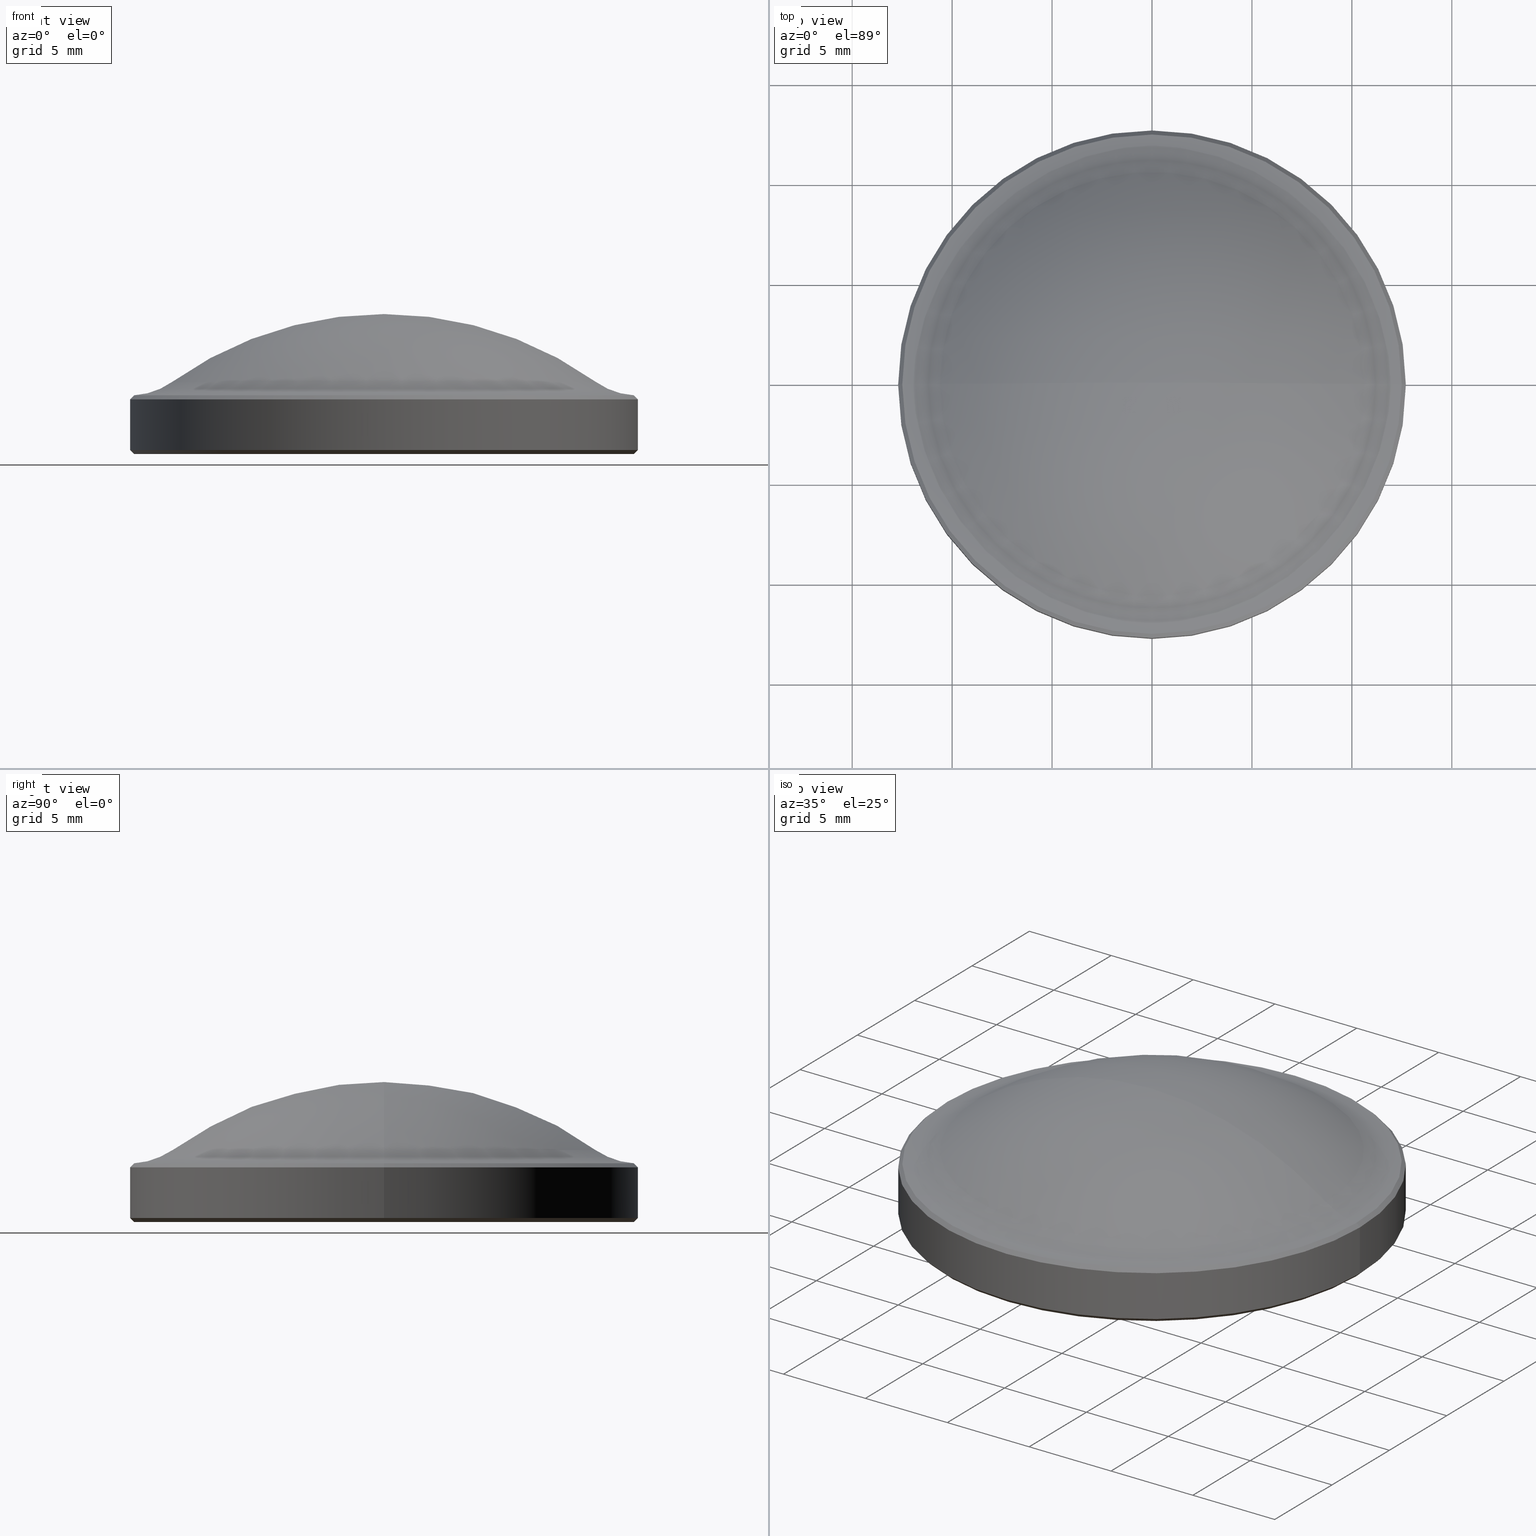
[diagram: canonical four-view strip — front | top / right | iso, engineering-drawing reading convention]
A machine part, canonical four-view strip (front | top / right | iso — engineering-drawing reading convention). The complete STEP part file that produces these views, byte-faithful:
ISO-10303-21;
HEADER;
FILE_DESCRIPTION (( 'STEP AP214' ),
    '1' );
FILE_NAME ('GL7AL1-025-012-IR1.STEP',
    '2024-07-21T09:23:36',
    ( '' ),
    ( '' ),
    'SwSTEP 2.0',
    'SolidWorks 2022',
    '' );
FILE_SCHEMA (( 'AUTOMOTIVE_DESIGN' ));
ENDSEC;

DATA;
#1 = SURFACE_STYLE_USAGE ( .BOTH. , #103 ) ;
#2 = DIRECTION ( 'NONE',  ( -1.000000000000000000, 0.000000000000000000, 1.388433779733575513E-16 ) ) ;
#3 = CARTESIAN_POINT ( 'NONE',  ( 0.000000000000000000, 0.000000000000000000, 0.000000000000000000 ) ) ;
#4 =( NAMED_UNIT ( * ) SI_UNIT ( $, .STERADIAN. ) SOLID_ANGLE_UNIT ( ) );
#5 = ORIENTED_EDGE ( 'NONE', *, *, #248, .F. ) ;
#6 = FACE_OUTER_BOUND ( 'NONE', #128, .T. ) ;
#7 = EDGE_CURVE ( 'NONE', #204, #291, #211, .T. ) ;
#8 = FILL_AREA_STYLE ('',( #209 ) ) ;
#9 = CIRCLE ( 'NONE', #90, 12.69999999999999929 ) ;
#10 = DIRECTION ( 'NONE',  ( -1.000000000000000000, 0.000000000000000000, 0.000000000000000000 ) ) ;
#11 = CARTESIAN_POINT ( 'NONE',  ( 0.000000000000000000, 0.000000000000000000, 0.000000000000000000 ) ) ;
#12 = MECHANICAL_DESIGN_GEOMETRIC_PRESENTATION_REPRESENTATION (  '', ( #74 ), #122 ) ;
#13 = DIRECTION ( 'NONE',  ( -0.000000000000000000, -0.000000000000000000, -1.000000000000000000 ) ) ;
#14 =( GEOMETRIC_REPRESENTATION_CONTEXT ( 3 ) GLOBAL_UNCERTAINTY_ASSIGNED_CONTEXT ( ( #226 ) ) GLOBAL_UNIT_ASSIGNED_CONTEXT ( ( #92, #141, #250 ) ) REPRESENTATION_CONTEXT ( 'NONE', 'WORKASPACE' ) );
#15 = CARTESIAN_POINT ( 'NONE',  ( 0.000000000000000000, 0.000000000000000000, -11.25199999999999889 ) ) ;
#16 = DIRECTION ( 'NONE',  ( 1.000000000000000000, 0.000000000000000000, 0.000000000000000000 ) ) ;
#17 = PRODUCT_DEFINITION_SHAPE ( 'NONE', 'NONE',  #48 ) ;
#18 = EDGE_CURVE ( 'NONE', #314, #254, #304, .T. ) ;
#19 = VERTEX_POINT ( 'NONE', #275 ) ;
#20 = VECTOR ( 'NONE', #279, 1000.000000000000000 ) ;
#21 = CARTESIAN_POINT ( 'NONE',  ( 8.206617439655612360E-17, 0.000000000000000000, 3.600121168435616248 ) ) ;
#22 = VERTEX_POINT ( 'NONE', #163 ) ;
#23 = DIRECTION ( 'NONE',  ( -1.224646799147353207E-16, -0.000000000000000000, -1.000000000000000000 ) ) ;
#24 = DIRECTION ( 'NONE',  ( 0.000000000000000000, 0.000000000000000000, -1.000000000000000000 ) ) ;
#25 = ORIENTED_EDGE ( 'NONE', *, *, #268, .T. ) ;
#26 =( GEOMETRIC_REPRESENTATION_CONTEXT ( 3 ) GLOBAL_UNCERTAINTY_ASSIGNED_CONTEXT ( ( #169 ) ) GLOBAL_UNIT_ASSIGNED_CONTEXT ( ( #308, #55, #221 ) ) REPRESENTATION_CONTEXT ( 'NONE', 'WORKASPACE' ) );
#27 = CIRCLE ( 'NONE', #59, 12.49410307713541712 ) ;
#28 = DIRECTION ( 'NONE',  ( -0.000000000000000000, -0.000000000000000000, 1.000000000000000000 ) ) ;
#29 = CARTESIAN_POINT ( 'NONE',  ( 12.69999999999999929, 1.555301434917138433E-15, 6.527496314496314511 ) ) ;
#30 = COLOUR_RGB ( '',1.000000000000000000, 1.000000000000000000, 1.000000000000000000 ) ;
#31 = EDGE_CURVE ( 'NONE', #204, #178, #264, .T. ) ;
#32 = EDGE_LOOP ( 'NONE', ( #143, #39, #292, #53 ) ) ;
#33 =( LENGTH_UNIT ( ) NAMED_UNIT ( * ) SI_UNIT ( .MILLI., .METRE. ) );
#34 = MANIFOLD_SOLID_BREP ( '����2', #124 ) ;
#35 = DIRECTION ( 'NONE',  ( 1.000000000000000000, 0.000000000000000000, -1.388433779733579211E-16 ) ) ;
#36 = AXIS2_PLACEMENT_3D ( 'NONE', #259, #170, #212 ) ;
#37 = UNCERTAINTY_MEASURE_WITH_UNIT (LENGTH_MEASURE( 1.000000000000000082E-05 ), #33, 'distance_accuracy_value', 'NONE');
#38 = ORIENTED_EDGE ( 'NONE', *, *, #190, .F. ) ;
#39 = ORIENTED_EDGE ( 'NONE', *, *, #198, .F. ) ;
#40 = FACE_OUTER_BOUND ( 'NONE', #217, .T. ) ;
#41 = AXIS2_PLACEMENT_3D ( 'NONE', #29, #161, #299 ) ;
#42 = SPHERICAL_SURFACE ( 'NONE', #85, 18.25199999999999889 ) ;
#43 = CARTESIAN_POINT ( 'NONE',  ( 0.000000000000000000, 0.000000000000000000, 2.730000000000021299 ) ) ;
#44 = DIRECTION ( 'NONE',  ( -1.000000000000000000, 0.000000000000000000, 9.504292548634709852E-17 ) ) ;
#45 = AXIS2_PLACEMENT_3D ( 'NONE', #182, #262, #101 ) ;
#46 = DIRECTION ( 'NONE',  ( -0.000000000000000000, -0.000000000000000000, -1.000000000000000000 ) ) ;
#47 = EDGE_CURVE ( 'NONE', #22, #254, #295, .T. ) ;
#48 = PRODUCT_DEFINITION ( 'δ֪', '', #285, #230 ) ;
#49 = CARTESIAN_POINT ( 'NONE',  ( 0.000000000000000000, 0.000000000000000000, 0.2000000000000196065 ) ) ;
#50 = ORIENTED_EDGE ( 'NONE', *, *, #190, .T. ) ;
#51 = AXIS2_PLACEMENT_3D ( 'NONE', #115, #91, #2 ) ;
#52 = LINE ( 'NONE', #223, #72 ) ;
#53 = ORIENTED_EDGE ( 'NONE', *, *, #18, .F. ) ;
#54 = APPLICATION_CONTEXT ( 'automotive_design' ) ;
#55 =( NAMED_UNIT ( * ) PLANE_ANGLE_UNIT ( ) SI_UNIT ( $, .RADIAN. ) );
#56 = EDGE_LOOP ( 'NONE', ( #274, #207 ) ) ;
#57 = DIRECTION ( 'NONE',  ( 1.000000000000000000, 0.000000000000000000, 0.000000000000000000 ) ) ;
#58 = CIRCLE ( 'NONE', #245, 18.25199999999999889 ) ;
#59 = AXIS2_PLACEMENT_3D ( 'NONE', #302, #306, #213 ) ;
#60 = ADVANCED_FACE ( 'NONE', ( #6 ), #197, .T. ) ;
#61 = EDGE_CURVE ( 'NONE', #291, #186, #111, .T. ) ;
#62 = SURFACE_SIDE_STYLE ('',( #296 ) ) ;
#63 = SHAPE_DEFINITION_REPRESENTATION ( #17, #240 ) ;
#64 = ORIENTED_EDGE ( 'NONE', *, *, #61, .T. ) ;
#65 = EDGE_LOOP ( 'NONE', ( #208, #144, #132, #220 ) ) ;
#66 = ORIENTED_EDGE ( 'NONE', *, *, #248, .T. ) ;
#67 = CARTESIAN_POINT ( 'NONE',  ( 0.000000000000000000, 0.000000000000000000, -11.25199999999999889 ) ) ;
#68 = FACE_OUTER_BOUND ( 'NONE', #286, .T. ) ;
#69 = DIRECTION ( 'NONE',  ( -1.224646799147353207E-16, -0.000000000000000000, -1.000000000000000000 ) ) ;
#70 = CARTESIAN_POINT ( 'NONE',  ( 0.000000000000000000, 0.000000000000000000, 0.000000000000000000 ) ) ;
#71 = ADVANCED_FACE ( 'NONE', ( #172 ), #216, .F. ) ;
#72 = VECTOR ( 'NONE', #80, 1000.000000000000000 ) ;
#73 = CIRCLE ( 'NONE', #247, 12.69999999999999929 ) ;
#74 = STYLED_ITEM ( 'NONE', ( #116 ), #240 ) ;
#75 = CARTESIAN_POINT ( 'NONE',  ( 12.69999999999999929, 1.555301434917138038E-15, 0.2000000000000196065 ) ) ;
#76 = ORIENTED_EDGE ( 'NONE', *, *, #165, .F. ) ;
#77 = COLOUR_RGB ( '',1.000000000000000000, 1.000000000000000000, 1.000000000000000000 ) ;
#78 = DIRECTION ( 'NONE',  ( -1.000000000000000000, 0.000000000000000000, 1.226362234330445841E-16 ) ) ;
#79 = EDGE_LOOP ( 'NONE', ( #76, #108, #273, #159 ) ) ;
#80 = DIRECTION ( 'NONE',  ( 0.7071067811865436870, 8.659560562354887252E-17, -0.7071067811865513475 ) ) ;
#81 = VERTEX_POINT ( 'NONE', #261 ) ;
#82 = ORIENTED_EDGE ( 'NONE', *, *, #146, .T. ) ;
#83 = ADVANCED_FACE ( 'NONE', ( #125 ), #42, .T. ) ;
#84 = EDGE_CURVE ( 'NONE', #291, #204, #27, .T. ) ;
#85 = AXIS2_PLACEMENT_3D ( 'NONE', #67, #151, #44 ) ;
#86 = ORIENTED_EDGE ( 'NONE', *, *, #84, .T. ) ;
#87 = ORIENTED_EDGE ( 'NONE', *, *, #310, .F. ) ;
#88 = DIRECTION ( 'NONE',  ( 0.000000000000000000, 0.000000000000000000, 1.000000000000000000 ) ) ;
#89 = CARTESIAN_POINT ( 'NONE',  ( 12.69999999999999929, 0.000000000000000000, 0.2000000000000196065 ) ) ;
#90 = AXIS2_PLACEMENT_3D ( 'NONE', #107, #28, #57 ) ;
#91 = DIRECTION ( 'NONE',  ( -1.224646799147353207E-16, 0.000000000000000000, -1.000000000000000000 ) ) ;
#92 =( LENGTH_UNIT ( ) NAMED_UNIT ( * ) SI_UNIT ( .MILLI., .METRE. ) );
#93 = PLANE ( 'NONE',  #270 ) ;
#94 = SPHERICAL_SURFACE ( 'NONE', #36, 18.25199999999999889 ) ;
#95 = AXIS2_PLACEMENT_3D ( 'NONE', #195, #281, #235 ) ;
#96 = DIRECTION ( 'NONE',  ( -1.000000000000000000, -1.224646799147353207E-16, 0.000000000000000000 ) ) ;
#97 = DIRECTION ( 'NONE',  ( 1.000000000000000000, 0.000000000000000000, -1.365923996832131609E-16 ) ) ;
#98 = CARTESIAN_POINT ( 'NONE',  ( 0.000000000000000000, 0.000000000000000000, 2.730000000000021299 ) ) ;
#99 = CONICAL_SURFACE ( 'NONE', #134, 12.49410307713545087, 0.7853981633974430610 ) ;
#100 = MECHANICAL_DESIGN_GEOMETRIC_PRESENTATION_REPRESENTATION (  '', ( #162 ), #14 ) ;
#101 = DIRECTION ( 'NONE',  ( 1.000000000000000000, 0.000000000000000000, 0.000000000000000000 ) ) ;
#102 = ORIENTED_EDGE ( 'NONE', *, *, #47, .F. ) ;
#103 = SURFACE_SIDE_STYLE ('',( #312 ) ) ;
#104 = CARTESIAN_POINT ( 'NONE',  ( -4.398440698781394997E-16, 0.000000000000000000, 2.935896922864572822 ) ) ;
#105 = ORIENTED_EDGE ( 'NONE', *, *, #206, .F. ) ;
#106 = AXIS2_PLACEMENT_3D ( 'NONE', #21, #202, #180 ) ;
#107 = CARTESIAN_POINT ( 'NONE',  ( 0.000000000000000000, 0.000000000000000000, 0.2000000000000196065 ) ) ;
#108 = ORIENTED_EDGE ( 'NONE', *, *, #147, .T. ) ;
#109 = FACE_OUTER_BOUND ( 'NONE', #32, .T. ) ;
#110 = ADVANCED_FACE ( 'NONE', ( #303 ), #192, .F. ) ;
#111 = LINE ( 'NONE', #205, #173 ) ;
#112 = AXIS2_PLACEMENT_3D ( 'NONE', #214, #278, #10 ) ;
#113 = APPLICATION_PROTOCOL_DEFINITION ( 'draft international standard', 'automotive_design', 1998, #54 ) ;
#114 = SURFACE_STYLE_USAGE ( .BOTH. , #62 ) ;
#115 = CARTESIAN_POINT ( 'NONE',  ( -4.398440698781394997E-16, 0.000000000000000000, 2.935896922864572822 ) ) ;
#116 = PRESENTATION_STYLE_ASSIGNMENT (( #1 ) ) ;
#117 = AXIS2_PLACEMENT_3D ( 'NONE', #155, #23, #78 ) ;
#118 = CIRCLE ( 'NONE', #179, 12.69999999999999929 ) ;
#119 = DIRECTION ( 'NONE',  ( -1.000000000000000000, 0.000000000000000000, 1.224646799147353207E-16 ) ) ;
#120 = ADVANCED_FACE ( 'NONE', ( #40 ), #94, .T. ) ;
#121 = DIRECTION ( 'NONE',  ( 0.000000000000000000, 0.000000000000000000, 1.000000000000000000 ) ) ;
#122 =( GEOMETRIC_REPRESENTATION_CONTEXT ( 3 ) GLOBAL_UNCERTAINTY_ASSIGNED_CONTEXT ( ( #37 ) ) GLOBAL_UNIT_ASSIGNED_CONTEXT ( ( #33, #140, #4 ) ) REPRESENTATION_CONTEXT ( 'NONE', 'WORKASPACE' ) );
#123 = CARTESIAN_POINT ( 'NONE',  ( 12.69999999999999929, 1.555301434917138038E-15, 2.930000000000000160 ) ) ;
#124 = CLOSED_SHELL ( 'NONE', ( #277, #224, #83, #71, #257, #199, #136, #110, #120, #311, #60 ) ) ;
#125 = FACE_OUTER_BOUND ( 'NONE', #309, .T. ) ;
#126 = CYLINDRICAL_SURFACE ( 'NONE', #112, 12.69999999999999929 ) ;
#127 = DIRECTION ( 'NONE',  ( 1.000000000000000000, 0.000000000000000000, 0.000000000000000000 ) ) ;
#128 = EDGE_LOOP ( 'NONE', ( #269, #293, #64, #267 ) ) ;
#129 = AXIS2_PLACEMENT_3D ( 'NONE', #70, #46, #16 ) ;
#130 = ORIENTED_EDGE ( 'NONE', *, *, #7, .T. ) ;
#131 = FACE_OUTER_BOUND ( 'NONE', #289, .T. ) ;
#132 = ORIENTED_EDGE ( 'NONE', *, *, #146, .F. ) ;
#133 = CARTESIAN_POINT ( 'NONE',  ( -12.69999999999999929, 1.555301434917138433E-15, 0.2000000000000196065 ) ) ;
#134 = AXIS2_PLACEMENT_3D ( 'NONE', #104, #137, #201 ) ;
#135 = AXIS2_PLACEMENT_3D ( 'NONE', #187, #229, #232 ) ;
#136 = ADVANCED_FACE ( 'NONE', ( #239 ), #93, .F. ) ;
#137 = DIRECTION ( 'NONE',  ( -1.224646799147353207E-16, 0.000000000000000000, -1.000000000000000000 ) ) ;
#138 = PRODUCT_CONTEXT ( 'NONE', #294, 'mechanical' ) ;
#139 = ORIENTED_EDGE ( 'NONE', *, *, #156, .F. ) ;
#140 =( NAMED_UNIT ( * ) PLANE_ANGLE_UNIT ( ) SI_UNIT ( $, .RADIAN. ) );
#141 =( NAMED_UNIT ( * ) PLANE_ANGLE_UNIT ( ) SI_UNIT ( $, .RADIAN. ) );
#142 = AXIS2_PLACEMENT_3D ( 'NONE', #149, #255, #119 ) ;
#143 = ORIENTED_EDGE ( 'NONE', *, *, #276, .F. ) ;
#144 = ORIENTED_EDGE ( 'NONE', *, *, #300, .T. ) ;
#145 = ORIENTED_EDGE ( 'NONE', *, *, #268, .F. ) ;
#146 = EDGE_CURVE ( 'NONE', #186, #81, #73, .T. ) ;
#147 = EDGE_CURVE ( 'NONE', #81, #186, #118, .T. ) ;
#148 = CIRCLE ( 'NONE', #167, 12.49999999999998224 ) ;
#149 = CARTESIAN_POINT ( 'NONE',  ( 0.000000000000000000, 0.000000000000000000, 6.527496314496316288 ) ) ;
#150 = LINE ( 'NONE', #236, #20 ) ;
#151 = DIRECTION ( 'NONE',  ( 0.000000000000000000, 1.000000000000000000, -0.000000000000000000 ) ) ;
#152 = DIRECTION ( 'NONE',  ( 1.000000000000000000, 0.000000000000000000, -0.000000000000000000 ) ) ;
#153 = PRODUCT ( 'GL7AL1-025-012-IR1', 'GL7AL1-025-012-IR1', '', ( #138 ) ) ;
#154 = FACE_OUTER_BOUND ( 'NONE', #79, .T. ) ;
#155 = CARTESIAN_POINT ( 'NONE',  ( 8.206617439655612360E-17, 0.000000000000000000, 3.600121168435616248 ) ) ;
#156 = EDGE_CURVE ( 'NONE', #265, #22, #148, .T. ) ;
#157 = LINE ( 'NONE', #133, #297 ) ;
#158 = FACE_OUTER_BOUND ( 'NONE', #65, .T. ) ;
#159 = ORIENTED_EDGE ( 'NONE', *, *, #18, .T. ) ;
#160 = AXIS2_PLACEMENT_3D ( 'NONE', #3, #88, #253 ) ;
#161 = DIRECTION ( 'NONE',  ( -1.224646799147353207E-16, 1.000000000000000000, 1.499759782661857608E-32 ) ) ;
#162 = STYLED_ITEM ( 'NONE', ( #227 ), #34 ) ;
#163 = CARTESIAN_POINT ( 'NONE',  ( 12.49999999999998224, 0.000000000000000000, 0.000000000000000000 ) ) ;
#164 = ORIENTED_EDGE ( 'NONE', *, *, #31, .T. ) ;
#165 = EDGE_CURVE ( 'NONE', #81, #254, #305, .T. ) ;
#166 = DIRECTION ( 'NONE',  ( -0.000000000000000000, -0.000000000000000000, -1.000000000000000000 ) ) ;
#167 = AXIS2_PLACEMENT_3D ( 'NONE', #260, #13, #238 ) ;
#168 = DIRECTION ( 'NONE',  ( -1.224646799147353207E-16, 0.000000000000000000, -1.000000000000000000 ) ) ;
#169 = UNCERTAINTY_MEASURE_WITH_UNIT (LENGTH_MEASURE( 1.000000000000000082E-05 ), #308, 'distance_accuracy_value', 'NONE');
#170 = DIRECTION ( 'NONE',  ( 0.000000000000000000, 1.000000000000000000, -0.000000000000000000 ) ) ;
#171 = DIRECTION ( 'NONE',  ( -1.000000000000000000, 0.000000000000000000, 1.224646799147353207E-16 ) ) ;
#172 = FACE_OUTER_BOUND ( 'NONE', #183, .T. ) ;
#173 = VECTOR ( 'NONE', #271, 999.9999999999998863 ) ;
#174 = DIRECTION ( 'NONE',  ( -0.000000000000000000, -0.000000000000000000, 1.000000000000000000 ) ) ;
#175 = EDGE_CURVE ( 'NONE', #19, #178, #228, .T. ) ;
#176 = PRESENTATION_LAYER_ASSIGNMENT (  '', '', ( #74 ) ) ;
#177 = DIRECTION ( 'NONE',  ( -0.000000000000000000, -0.000000000000000000, -1.000000000000000000 ) ) ;
#178 = VERTEX_POINT ( 'NONE', #194 ) ;
#179 = AXIS2_PLACEMENT_3D ( 'NONE', #43, #210, #97 ) ;
#180 = DIRECTION ( 'NONE',  ( -1.000000000000000000, 0.000000000000000000, 1.226362234330445841E-16 ) ) ;
#181 = ORIENTED_EDGE ( 'NONE', *, *, #249, .F. ) ;
#182 = CARTESIAN_POINT ( 'NONE',  ( 0.000000000000000000, 0.000000000000000000, 0.2000000000000196065 ) ) ;
#183 = EDGE_LOOP ( 'NONE', ( #86, #164, #284, #38 ) ) ;
#184 = AXIS2_PLACEMENT_3D ( 'NONE', #15, #191, #96 ) ;
#185 = CARTESIAN_POINT ( 'NONE',  ( -4.398440698782108916E-16, 0.000000000000000000, 2.935896922863990177 ) ) ;
#186 = VERTEX_POINT ( 'NONE', #193 ) ;
#187 = CARTESIAN_POINT ( 'NONE',  ( 0.000000000000000000, 0.000000000000000000, 0.2000000000000196065 ) ) ;
#188 = CONICAL_SURFACE ( 'NONE', #45, 12.69999999999999929, 0.7853981633974439491 ) ;
#189 = ORIENTED_EDGE ( 'NONE', *, *, #249, .T. ) ;
#190 = EDGE_CURVE ( 'NONE', #291, #251, #256, .T. ) ;
#191 = DIRECTION ( 'NONE',  ( -1.224646799147353207E-16, 1.000000000000000000, 1.499759782661857608E-32 ) ) ;
#192 = TOROIDAL_SURFACE ( 'NONE', #252, 12.69999999999999929, 3.597496314496318792 ) ;
#193 = CARTESIAN_POINT ( 'NONE',  ( -12.69999999999999929, 0.000000000000000000, 2.730000000000023075 ) ) ;
#194 = CARTESIAN_POINT ( 'NONE',  ( 10.60895851618369967, 1.414654521538122764E-15, 3.600121168435614916 ) ) ;
#195 = CARTESIAN_POINT ( 'NONE',  ( -12.69999999999999929, 0.000000000000000000, 6.527496314496318064 ) ) ;
#196 = DIRECTION ( 'NONE',  ( 1.000000000000000000, 0.000000000000000000, -1.365923996832131609E-16 ) ) ;
#197 = CONICAL_SURFACE ( 'NONE', #51, 12.49410307713545087, 0.7853981633974430610 ) ;
#198 = EDGE_CURVE ( 'NONE', #22, #265, #283, .T. ) ;
#199 = ADVANCED_FACE ( 'NONE', ( #154 ), #126, .T. ) ;
#200 = ORIENTED_EDGE ( 'NONE', *, *, #175, .T. ) ;
#201 = DIRECTION ( 'NONE',  ( -1.000000000000000000, 0.000000000000000000, 1.388433779733575513E-16 ) ) ;
#202 = DIRECTION ( 'NONE',  ( -1.224646799147353207E-16, -0.000000000000000000, -1.000000000000000000 ) ) ;
#203 = APPLICATION_PROTOCOL_DEFINITION ( 'draft international standard', 'automotive_design', 1998, #294 ) ;
#204 = VERTEX_POINT ( 'NONE', #258 ) ;
#205 = CARTESIAN_POINT ( 'NONE',  ( -12.49410307713545087, 0.000000000000000000, 2.935896922864574599 ) ) ;
#206 = EDGE_CURVE ( 'NONE', #186, #314, #150, .T. ) ;
#207 = ORIENTED_EDGE ( 'NONE', *, *, #156, .T. ) ;
#208 = ORIENTED_EDGE ( 'NONE', *, *, #7, .F. ) ;
#209 = FILL_AREA_STYLE_COLOUR ( '', #77 ) ;
#210 = DIRECTION ( 'NONE',  ( -1.224646799147353207E-16, 0.000000000000000000, -1.000000000000000000 ) ) ;
#211 = CIRCLE ( 'NONE', #288, 12.49410307713541712 ) ;
#212 = DIRECTION ( 'NONE',  ( -1.000000000000000000, 0.000000000000000000, 9.504292548634709852E-17 ) ) ;
#213 = DIRECTION ( 'NONE',  ( 1.000000000000000000, 0.000000000000000000, -1.388433779733579211E-16 ) ) ;
#214 = CARTESIAN_POINT ( 'NONE',  ( 0.000000000000000000, 0.000000000000000000, 2.930000000000000160 ) ) ;
#215 = DIRECTION ( 'NONE',  ( 0.000000000000000000, -1.000000000000000000, 0.000000000000000000 ) ) ;
#216 = TOROIDAL_SURFACE ( 'NONE', #142, 12.69999999999999929, 3.597496314496318792 ) ;
#217 = EDGE_LOOP ( 'NONE', ( #243, #189, #87 ) ) ;
#218 = FILL_AREA_STYLE ('',( #316 ) ) ;
#219 = DIRECTION ( 'NONE',  ( -0.7071067811865444641, 8.659560562354895880E-17, 0.7071067811865505703 ) ) ;
#220 = ORIENTED_EDGE ( 'NONE', *, *, #61, .F. ) ;
#221 =( NAMED_UNIT ( * ) SI_UNIT ( $, .STERADIAN. ) SOLID_ANGLE_UNIT ( ) );
#222 = ORIENTED_EDGE ( 'NONE', *, *, #31, .F. ) ;
#223 = CARTESIAN_POINT ( 'NONE',  ( 12.49410307713545087, 1.530086334163102642E-15, 2.935896922864571046 ) ) ;
#224 = ADVANCED_FACE ( 'NONE', ( #68 ), #241, .T. ) ;
#225 = ORIENTED_EDGE ( 'NONE', *, *, #276, .T. ) ;
#226 = UNCERTAINTY_MEASURE_WITH_UNIT (LENGTH_MEASURE( 1.000000000000000082E-05 ), #92, 'distance_accuracy_value', 'NONE');
#227 = PRESENTATION_STYLE_ASSIGNMENT (( #114 ) ) ;
#228 = CIRCLE ( 'NONE', #184, 18.25199999999999889 ) ;
#229 = DIRECTION ( 'NONE',  ( -0.000000000000000000, -0.000000000000000000, 1.000000000000000000 ) ) ;
#230 = PRODUCT_DEFINITION_CONTEXT ( 'detailed design', #54, 'design' ) ;
#231 = DIRECTION ( 'NONE',  ( 0.7071067811865444641, 0.000000000000000000, 0.7071067811865505703 ) ) ;
#232 = DIRECTION ( 'NONE',  ( 1.000000000000000000, 0.000000000000000000, 0.000000000000000000 ) ) ;
#233 = CIRCLE ( 'NONE', #106, 10.60895851618369967 ) ;
#234 = PRESENTATION_LAYER_ASSIGNMENT (  '', '', ( #162 ) ) ;
#235 = DIRECTION ( 'NONE',  ( 0.000000000000000000, 0.000000000000000000, -1.000000000000000000 ) ) ;
#236 = CARTESIAN_POINT ( 'NONE',  ( -12.69999999999999929, 0.000000000000000000, 2.930000000000000160 ) ) ;
#237 = AXIS2_PLACEMENT_3D ( 'NONE', #313, #177, #266 ) ;
#238 = DIRECTION ( 'NONE',  ( 1.000000000000000000, 0.000000000000000000, 0.000000000000000000 ) ) ;
#239 = FACE_OUTER_BOUND ( 'NONE', #56, .T. ) ;
#240 = ADVANCED_BREP_SHAPE_REPRESENTATION ( 'GL7AL1-025-012-IR1', ( #34, #160 ), #26 ) ;
#241 = CONICAL_SURFACE ( 'NONE', #282, 12.69999999999999929, 0.7853981633974439491 ) ;
#242 = CARTESIAN_POINT ( 'NONE',  ( -12.49999999999998224, 1.543054966925663892E-15, 0.000000000000000000 ) ) ;
#243 = ORIENTED_EDGE ( 'NONE', *, *, #175, .F. ) ;
#244 = CARTESIAN_POINT ( 'NONE',  ( -12.49410307714051882, 0.000000000000000000, 2.935896922863991954 ) ) ;
#245 = AXIS2_PLACEMENT_3D ( 'NONE', #263, #215, #24 ) ;
#246 = EDGE_LOOP ( 'NONE', ( #222, #130, #50, #25 ) ) ;
#247 = AXIS2_PLACEMENT_3D ( 'NONE', #98, #168, #196 ) ;
#248 = EDGE_CURVE ( 'NONE', #254, #314, #9, .T. ) ;
#249 = EDGE_CURVE ( 'NONE', #19, #251, #58, .T. ) ;
#250 =( NAMED_UNIT ( * ) SI_UNIT ( $, .STERADIAN. ) SOLID_ANGLE_UNIT ( ) );
#251 = VERTEX_POINT ( 'NONE', #318 ) ;
#252 = AXIS2_PLACEMENT_3D ( 'NONE', #280, #69, #171 ) ;
#253 = DIRECTION ( 'NONE',  ( 1.000000000000000000, 0.000000000000000000, 0.000000000000000000 ) ) ;
#254 = VERTEX_POINT ( 'NONE', #75 ) ;
#255 = DIRECTION ( 'NONE',  ( -1.224646799147353207E-16, -0.000000000000000000, -1.000000000000000000 ) ) ;
#256 = CIRCLE ( 'NONE', #95, 3.597496314496318792 ) ;
#257 = ADVANCED_FACE ( 'NONE', ( #131 ), #290, .T. ) ;
#258 = CARTESIAN_POINT ( 'NONE',  ( 12.49410307714051882, 1.530086334163723081E-15, 2.935896922863988845 ) ) ;
#259 = CARTESIAN_POINT ( 'NONE',  ( 0.000000000000000000, 0.000000000000000000, -11.25199999999999889 ) ) ;
#260 = CARTESIAN_POINT ( 'NONE',  ( 0.000000000000000000, 0.000000000000000000, 0.000000000000000000 ) ) ;
#261 = CARTESIAN_POINT ( 'NONE',  ( 12.69999999999999929, 1.555301434917138038E-15, 2.730000000000019522 ) ) ;
#262 = DIRECTION ( 'NONE',  ( -0.000000000000000000, -0.000000000000000000, 1.000000000000000000 ) ) ;
#263 = CARTESIAN_POINT ( 'NONE',  ( 0.000000000000000000, 0.000000000000000000, -11.25199999999999889 ) ) ;
#264 = CIRCLE ( 'NONE', #41, 3.597496314496318348 ) ;
#265 = VERTEX_POINT ( 'NONE', #242 ) ;
#266 = DIRECTION ( 'NONE',  ( -1.000000000000000000, 0.000000000000000000, 0.000000000000000000 ) ) ;
#267 = ORIENTED_EDGE ( 'NONE', *, *, #147, .F. ) ;
#268 = EDGE_CURVE ( 'NONE', #251, #178, #315, .T. ) ;
#269 = ORIENTED_EDGE ( 'NONE', *, *, #300, .F. ) ;
#270 = AXIS2_PLACEMENT_3D ( 'NONE', #11, #121, #152 ) ;
#271 = DIRECTION ( 'NONE',  ( -0.7071067811865440200, 0.000000000000000000, -0.7071067811865511255 ) ) ;
#272 = DIRECTION ( 'NONE',  ( 1.224646799147353207E-16, -0.000000000000000000, 1.000000000000000000 ) ) ;
#273 = ORIENTED_EDGE ( 'NONE', *, *, #206, .T. ) ;
#274 = ORIENTED_EDGE ( 'NONE', *, *, #198, .T. ) ;
#275 = CARTESIAN_POINT ( 'NONE',  ( 1.117612668901874404E-15, 0.000000000000000000, 6.999999999999999112 ) ) ;
#276 = EDGE_CURVE ( 'NONE', #265, #314, #157, .T. ) ;
#277 = ADVANCED_FACE ( 'NONE', ( #158 ), #99, .T. ) ;
#278 = DIRECTION ( 'NONE',  ( -0.000000000000000000, -0.000000000000000000, -1.000000000000000000 ) ) ;
#279 = DIRECTION ( 'NONE',  ( -0.000000000000000000, -0.000000000000000000, -1.000000000000000000 ) ) ;
#280 = CARTESIAN_POINT ( 'NONE',  ( 0.000000000000000000, 0.000000000000000000, 6.527496314496316288 ) ) ;
#281 = DIRECTION ( 'NONE',  ( 0.000000000000000000, -1.000000000000000000, 0.000000000000000000 ) ) ;
#282 = AXIS2_PLACEMENT_3D ( 'NONE', #49, #174, #127 ) ;
#283 = CIRCLE ( 'NONE', #129, 12.49999999999998224 ) ;
#284 = ORIENTED_EDGE ( 'NONE', *, *, #310, .T. ) ;
#285 = PRODUCT_DEFINITION_FORMATION_WITH_SPECIFIED_SOURCE ( '�κ�', '', #153, .NOT_KNOWN. ) ;
#286 = EDGE_LOOP ( 'NONE', ( #139, #225, #5, #102 ) ) ;
#287 = CARTESIAN_POINT ( 'NONE',  ( -12.69999999999999929, 0.000000000000000000, 0.2000000000000196065 ) ) ;
#288 = AXIS2_PLACEMENT_3D ( 'NONE', #185, #272, #35 ) ;
#289 = EDGE_LOOP ( 'NONE', ( #82, #317, #66, #105 ) ) ;
#290 = CYLINDRICAL_SURFACE ( 'NONE', #237, 12.69999999999999929 ) ;
#291 = VERTEX_POINT ( 'NONE', #244 ) ;
#292 = ORIENTED_EDGE ( 'NONE', *, *, #47, .T. ) ;
#293 = ORIENTED_EDGE ( 'NONE', *, *, #84, .F. ) ;
#294 = APPLICATION_CONTEXT ( 'automotive_design' ) ;
#295 = LINE ( 'NONE', #89, #298 ) ;
#296 = SURFACE_STYLE_FILL_AREA ( #8 ) ;
#297 = VECTOR ( 'NONE', #219, 1000.000000000000227 ) ;
#298 = VECTOR ( 'NONE', #231, 1000.000000000000227 ) ;
#299 = DIRECTION ( 'NONE',  ( -1.000000000000000000, -1.224646799147353700E-16, 0.000000000000000000 ) ) ;
#300 = EDGE_CURVE ( 'NONE', #204, #81, #52, .T. ) ;
#301 = PRODUCT_RELATED_PRODUCT_CATEGORY ( 'part', '', ( #153 ) ) ;
#302 = CARTESIAN_POINT ( 'NONE',  ( -4.398440698782108916E-16, 0.000000000000000000, 2.935896922863990177 ) ) ;
#303 = FACE_OUTER_BOUND ( 'NONE', #246, .T. ) ;
#304 = CIRCLE ( 'NONE', #135, 12.69999999999999929 ) ;
#305 = LINE ( 'NONE', #123, #307 ) ;
#306 = DIRECTION ( 'NONE',  ( 1.224646799147353207E-16, -0.000000000000000000, 1.000000000000000000 ) ) ;
#307 = VECTOR ( 'NONE', #166, 1000.000000000000000 ) ;
#308 =( LENGTH_UNIT ( ) NAMED_UNIT ( * ) SI_UNIT ( .MILLI., .METRE. ) );
#309 = EDGE_LOOP ( 'NONE', ( #181, #200, #145 ) ) ;
#310 = EDGE_CURVE ( 'NONE', #178, #251, #233, .T. ) ;
#311 = ADVANCED_FACE ( 'NONE', ( #109 ), #188, .T. ) ;
#312 = SURFACE_STYLE_FILL_AREA ( #218 ) ;
#313 = CARTESIAN_POINT ( 'NONE',  ( 0.000000000000000000, 0.000000000000000000, 2.930000000000000160 ) ) ;
#314 = VERTEX_POINT ( 'NONE', #287 ) ;
#315 = CIRCLE ( 'NONE', #117, 10.60895851618369967 ) ;
#316 = FILL_AREA_STYLE_COLOUR ( '', #30 ) ;
#317 = ORIENTED_EDGE ( 'NONE', *, *, #165, .T. ) ;
#318 = CARTESIAN_POINT ( 'NONE',  ( -10.60895851618369967, 0.000000000000000000, 3.600121168435617580 ) ) ;
ENDSEC;
END-ISO-10303-21;
